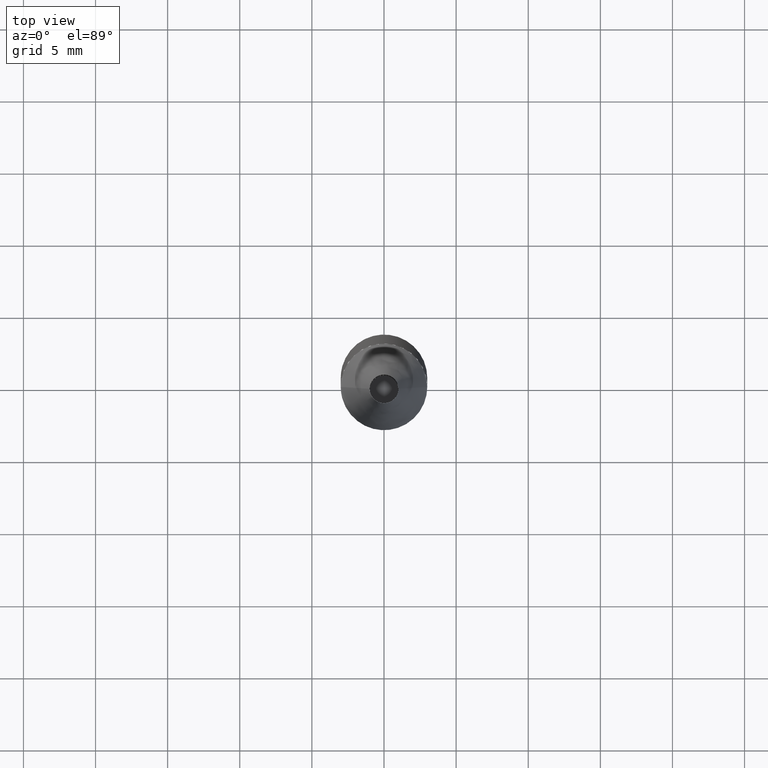
[diagram: clean part render]
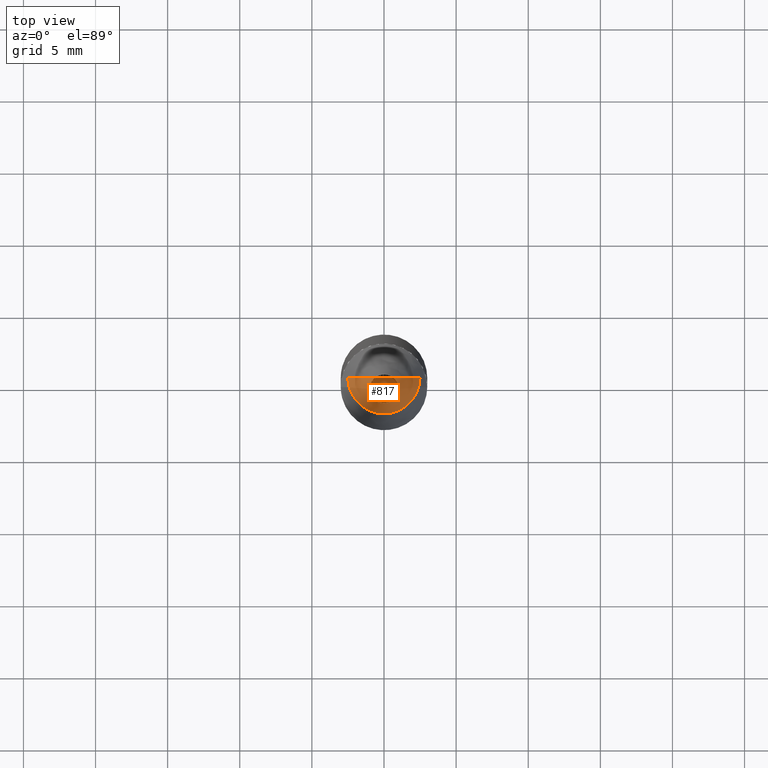
[diagram: same view with one face highlighted and labeled with its STEP entity id]
A machine part, top view. The second image highlights one B-rep face of the part: STEP entity #817.
In plain terms, the highlighted face is a freeform B-spline surface patch.
Its self-contained STEP definition (entity closure, byte-faithful):
#421=CARTESIAN_POINT('',(2.5,0.0,36.535898384862));
#425=CARTESIAN_POINT('',(-2.5,0.0,36.535898384862));
#426=CARTESIAN_POINT('',(0.0,0.0,36.535898384862));
#436=CARTESIAN_POINT('',(-2.5,-2.5,36.535898384862));
#437=CARTESIAN_POINT('',(0.0,-2.5,36.535898384862));
#438=CARTESIAN_POINT('',(2.5,-2.5,36.535898384862));
#802=(
BOUNDED_SURFACE()
B_SPLINE_SURFACE(1,2,(
(#425,#436,#437,#438,#421),
(#426,#426,#426,#426,#426)
), .UNSPECIFIED.,.F.,.F.,.F.)
B_SPLINE_SURFACE_WITH_KNOTS((2,2),(3,2,3),(
0.0,1.0),(
0.0,0.5,1.0), .UNSPECIFIED.)
GEOMETRIC_REPRESENTATION_ITEM()
RATIONAL_B_SPLINE_SURFACE(((1.0,0.707106781187,1.0,0.707106781187,1.0),
(1.0,0.707106781187,1.0,0.707106781187,1.0)
))
REPRESENTATION_ITEM('')
SURFACE()
);
#803=(
BOUNDED_CURVE()
B_SPLINE_CURVE(1,(#426,#421),.UNSPECIFIED.,.F.,.F.)
B_SPLINE_CURVE_WITH_KNOTS((2,2),
(0.0,1.0),.UNSPECIFIED.)
CURVE()
GEOMETRIC_REPRESENTATION_ITEM()
RATIONAL_B_SPLINE_CURVE((1.0,1.0))
REPRESENTATION_ITEM('')
);
#804=(
BOUNDED_CURVE()
B_SPLINE_CURVE(2,(#421,#438,#437,#436,#425),.UNSPECIFIED.,.F.,.F.)
B_SPLINE_CURVE_WITH_KNOTS((3,2,3),
(0.0,0.5,1.0),.UNSPECIFIED.)
CURVE()
GEOMETRIC_REPRESENTATION_ITEM()
RATIONAL_B_SPLINE_CURVE((1.0,0.707106781187,1.0,0.707106781187,1.0))
REPRESENTATION_ITEM('')
);
#805=(
BOUNDED_CURVE()
B_SPLINE_CURVE(1,(#425,#426),.UNSPECIFIED.,.F.,.F.)
B_SPLINE_CURVE_WITH_KNOTS((2,2),
(0.0,1.0),.UNSPECIFIED.)
CURVE()
GEOMETRIC_REPRESENTATION_ITEM()
RATIONAL_B_SPLINE_CURVE((1.0,1.0))
REPRESENTATION_ITEM('')
);
#806=VERTEX_POINT('',#421);
#807=VERTEX_POINT('',#425);
#808=VERTEX_POINT('',#426);
#809=EDGE_CURVE('',#808,#806,#803,.T.);
#810=EDGE_CURVE('',#806,#807,#804,.T.);
#811=EDGE_CURVE('',#807,#808,#805,.T.);
#812=ORIENTED_EDGE('',*,*,#809,.T.);
#813=ORIENTED_EDGE('',*,*,#810,.T.);
#814=ORIENTED_EDGE('',*,*,#811,.T.);
#815=EDGE_LOOP('',(#812,#813,#814));
#816=FACE_OUTER_BOUND('',#815,.T.);
#817=ADVANCED_FACE('',(#816),#802,.T.);